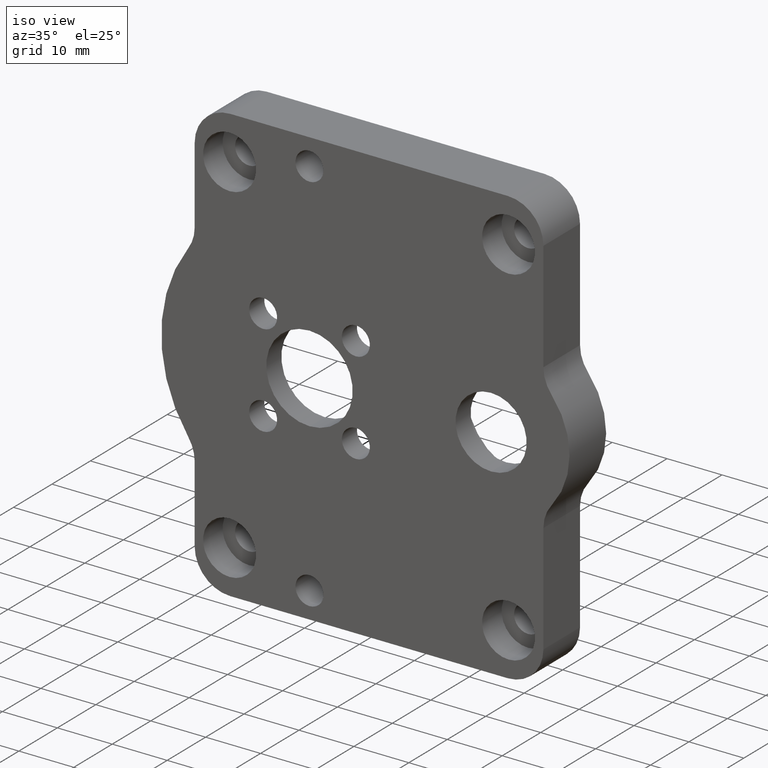
[diagram: clean part render]
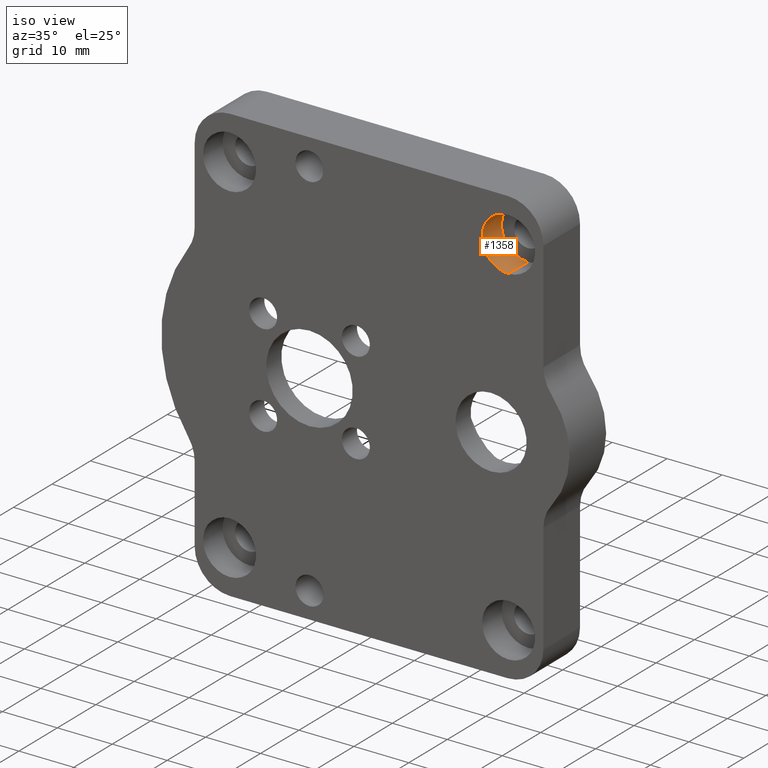
[diagram: same view with one face highlighted and labeled with its STEP entity id]
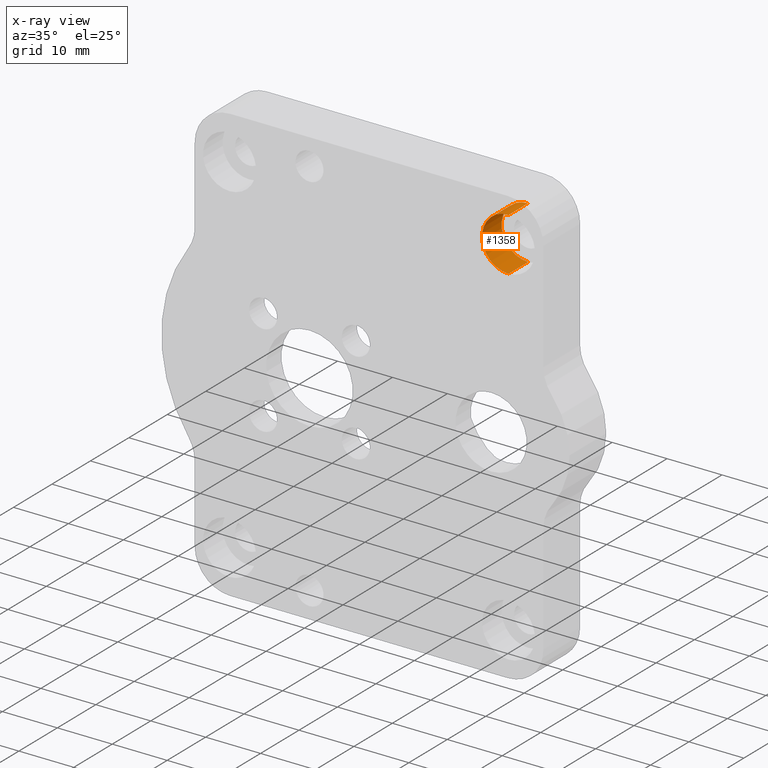
[diagram: x-ray of the same camera — body ghosted, the highlighted face saturated]
A machine part, iso view. The second image highlights one B-rep face of the part: STEP entity #1358.
The next image is the same camera in x-ray: the body ghosted, the highlighted face saturated — about 0% of this face is hidden behind the body in this view.
In plain terms, the highlighted cylindrical surface (edge-blend (fillet) strip) has radius 4.826 mm, axis along (-0, -1, -0).
Its self-contained STEP definition (entity closure, byte-faithful):
#5 = CARTESIAN_POINT ( 'NONE',  ( 2.249999999999999556, 0.0000000000000000000, -0.3125000000000001665 ) ) ;
#208 = EDGE_LOOP ( 'NONE', ( #937, #1930, #417, #1714 ) ) ;
#313 = CARTESIAN_POINT ( 'NONE',  ( 2.249999999999999556, 0.0000000000000000000, -0.3125000000000001665 ) ) ;
#328 = CARTESIAN_POINT ( 'NONE',  ( 2.249999999999999556, 0.0000000000000000000, -0.5025000000000000577 ) ) ;
#344 = VERTEX_POINT ( 'NONE', #769 ) ;
#368 = CARTESIAN_POINT ( 'NONE',  ( 2.249999999999999556, 0.0000000000000000000, -0.1225000000000002615 ) ) ;
#375 = DIRECTION ( 'NONE',  ( 0.0000000000000000000, 0.0000000000000000000, -1.000000000000000000 ) ) ;
#417 = ORIENTED_EDGE ( 'NONE', *, *, #1814, .T. ) ;
#469 = CYLINDRICAL_SURFACE ( 'NONE', #1219, 0.1899999999999998912 ) ;
#495 = CIRCLE ( 'NONE', #1906, 0.1899999999999998912 ) ;
#499 = VECTOR ( 'NONE', #1800, 39.37007874015748143 ) ;
#616 = FACE_OUTER_BOUND ( 'NONE', #208, .T. ) ;
#769 = CARTESIAN_POINT ( 'NONE',  ( 2.249999999999999556, 0.0000000000000000000, -0.1225000000000002615 ) ) ;
#775 = DIRECTION ( 'NONE',  ( 0.0000000000000000000, 0.0000000000000000000, -1.000000000000000000 ) ) ;
#794 = DIRECTION ( 'NONE',  ( 0.0000000000000000000, 0.0000000000000000000, -1.000000000000000000 ) ) ;
#884 = LINE ( 'NONE', #1331, #499 ) ;
#937 = ORIENTED_EDGE ( 'NONE', *, *, #1269, .F. ) ;
#946 = VERTEX_POINT ( 'NONE', #2047 ) ;
#970 = VERTEX_POINT ( 'NONE', #328 ) ;
#1088 = EDGE_CURVE ( 'NONE', #1798, #970, #884, .T. ) ;
#1219 = AXIS2_PLACEMENT_3D ( 'NONE', #313, #1636, #775 ) ;
#1269 = EDGE_CURVE ( 'NONE', #946, #1798, #495, .T. ) ;
#1331 = CARTESIAN_POINT ( 'NONE',  ( 2.249999999999999556, 0.0000000000000000000, -0.5025000000000000577 ) ) ;
#1358 = ADVANCED_FACE ( 'NONE', ( #616 ), #469, .F. ) ;
#1360 = AXIS2_PLACEMENT_3D ( 'NONE', #5, #1478, #794 ) ;
#1422 = CIRCLE ( 'NONE', #1360, 0.1899999999999998912 ) ;
#1478 = DIRECTION ( 'NONE',  ( -0.0000000000000000000, -1.000000000000000000, -0.0000000000000000000 ) ) ;
#1623 = VECTOR ( 'NONE', #1872, 39.37007874015748143 ) ;
#1636 = DIRECTION ( 'NONE',  ( -0.0000000000000000000, -1.000000000000000000, -0.0000000000000000000 ) ) ;
#1673 = CARTESIAN_POINT ( 'NONE',  ( 2.249999999999999556, 0.2000000000000000111, -0.3125000000000001665 ) ) ;
#1705 = LINE ( 'NONE', #368, #1623 ) ;
#1714 = ORIENTED_EDGE ( 'NONE', *, *, #1088, .F. ) ;
#1728 = EDGE_CURVE ( 'NONE', #946, #344, #1705, .T. ) ;
#1798 = VERTEX_POINT ( 'NONE', #2015 ) ;
#1800 = DIRECTION ( 'NONE',  ( -0.0000000000000000000, -1.000000000000000000, -0.0000000000000000000 ) ) ;
#1814 = EDGE_CURVE ( 'NONE', #344, #970, #1422, .T. ) ;
#1872 = DIRECTION ( 'NONE',  ( -0.0000000000000000000, -1.000000000000000000, -0.0000000000000000000 ) ) ;
#1906 = AXIS2_PLACEMENT_3D ( 'NONE', #1673, #2096, #375 ) ;
#1930 = ORIENTED_EDGE ( 'NONE', *, *, #1728, .T. ) ;
#2015 = CARTESIAN_POINT ( 'NONE',  ( 2.249999999999999556, 0.2000000000000000111, -0.5025000000000000577 ) ) ;
#2047 = CARTESIAN_POINT ( 'NONE',  ( 2.249999999999999556, 0.2000000000000000111, -0.1225000000000002615 ) ) ;
#2096 = DIRECTION ( 'NONE',  ( -0.0000000000000000000, -1.000000000000000000, -0.0000000000000000000 ) ) ;